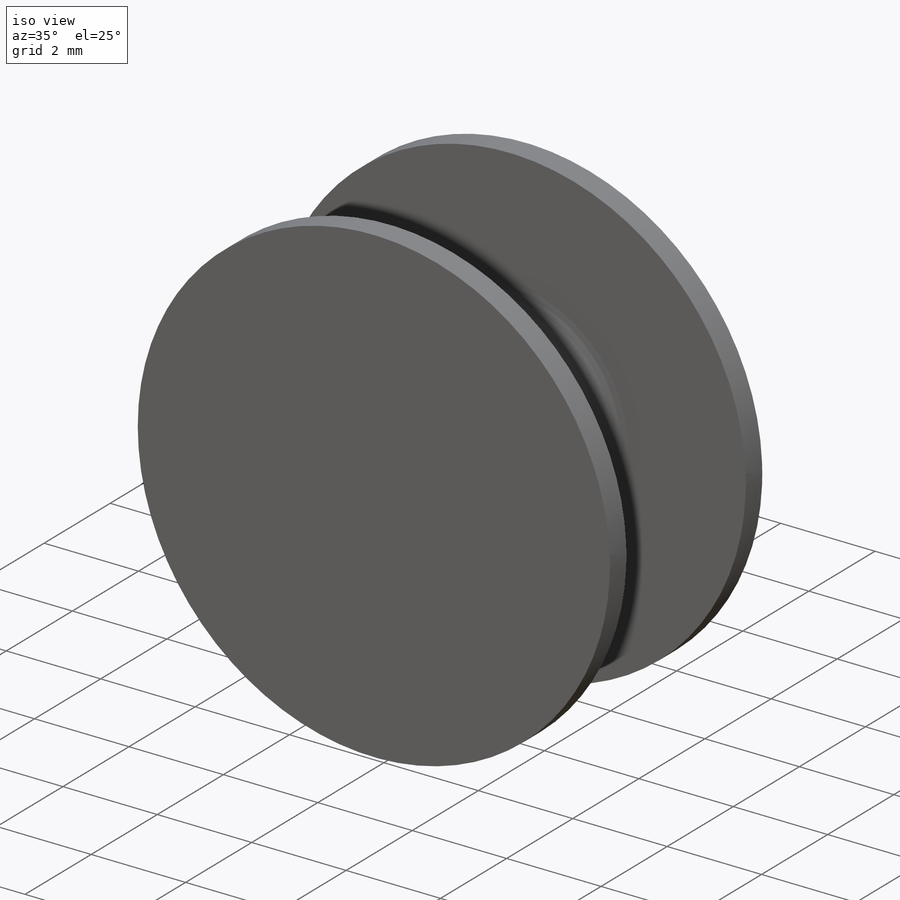
[diagram: iso view]
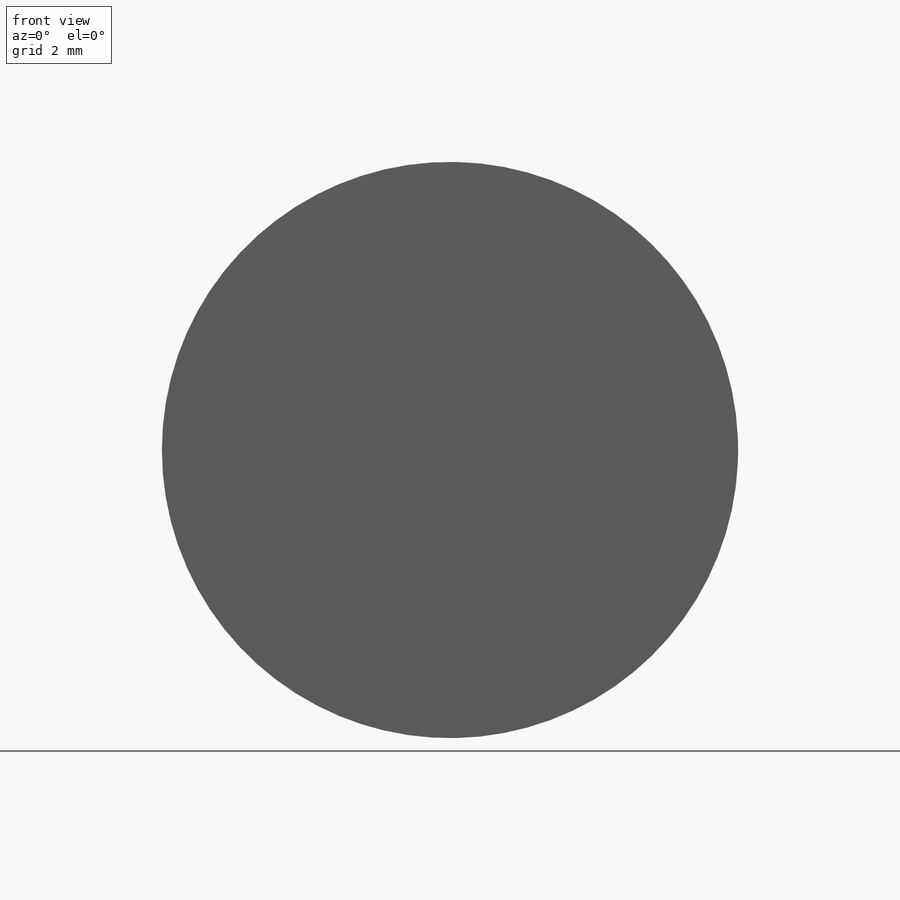
[diagram: front view]
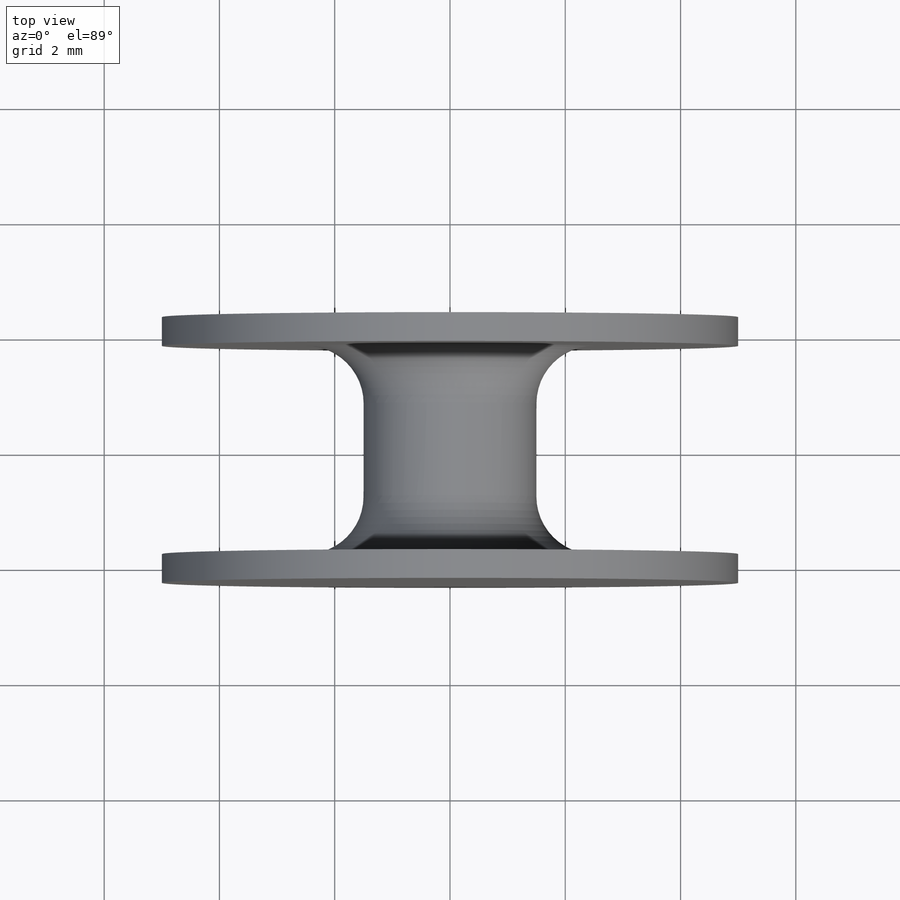
[diagram: top view]
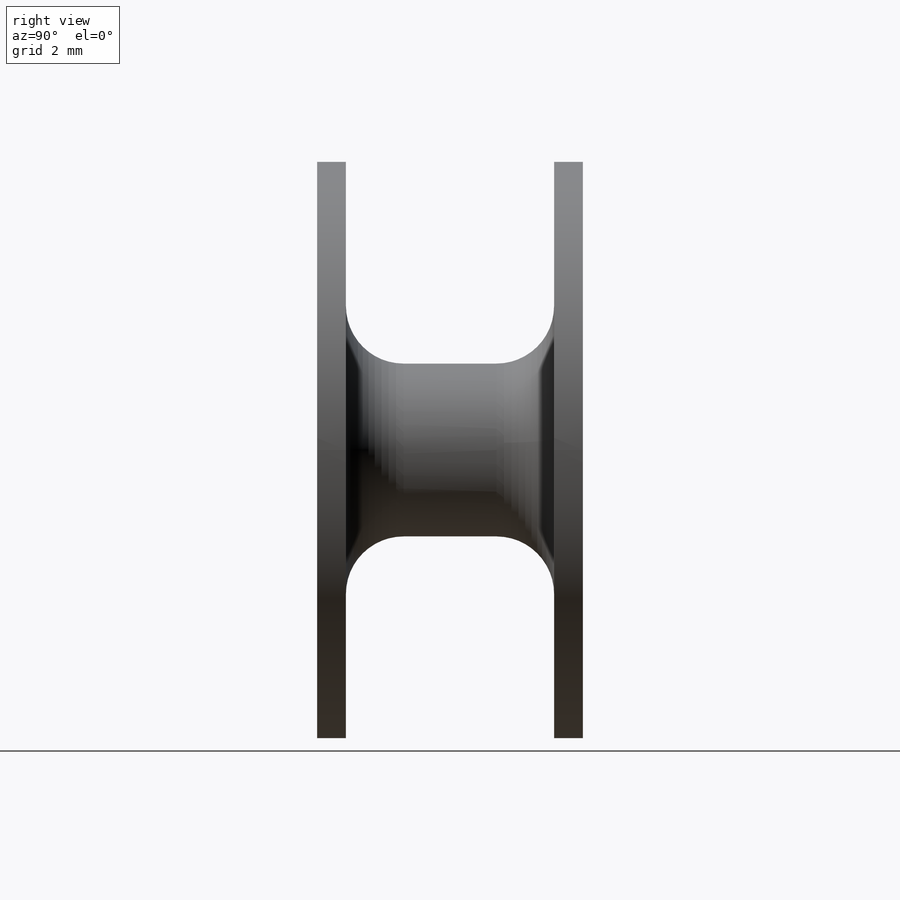
[diagram: right view]
SOLIDWORKS PART (.sldprt)
format: sldprt  version: not decoded by parser v0  size: 327,168 bytes
history: native  units: mm
features: plane x3, sketch x2, material x1, extrude x1, cut_revolve x1, fillet x1 + 2 further entries (+12 scaffold rows collapsed)
feature tree (23):
  scaffold x12  (default folders/planes/origin — collapsed)
  material  "Material <not specified>"
  plane  "Plane1"
  plane  "Plane2"
  plane  "Plane3"
  "Axis2"
  "Axis3"
  sketch  "Sketch7"  dims[c1.D1=45.5mm c1.D2=~80.901623mm c2.D1=10.0mm c2.D3=110.0mm c3.D3=3.25deg c4.D3=110.0mm c5.D3=~5.829862deg]
  extrude  "Extrude5"  Depth=4.6125mm
  sketch  "Sketch8"  dims[D1=0.5mm D2=3.0mm]
  cut_revolve  "Cut-Revolve1"  Angle=360deg
  fillet  "Fillet1"  Radius=1mm
decode coverage: 5 of 5 modeling features carry decoded parameters; 2 rows unclassified (native names shown)
note: ~ marks probable driven/reference dimensions
note: suppression state not decoded; provenance and decode notes live in map.json
